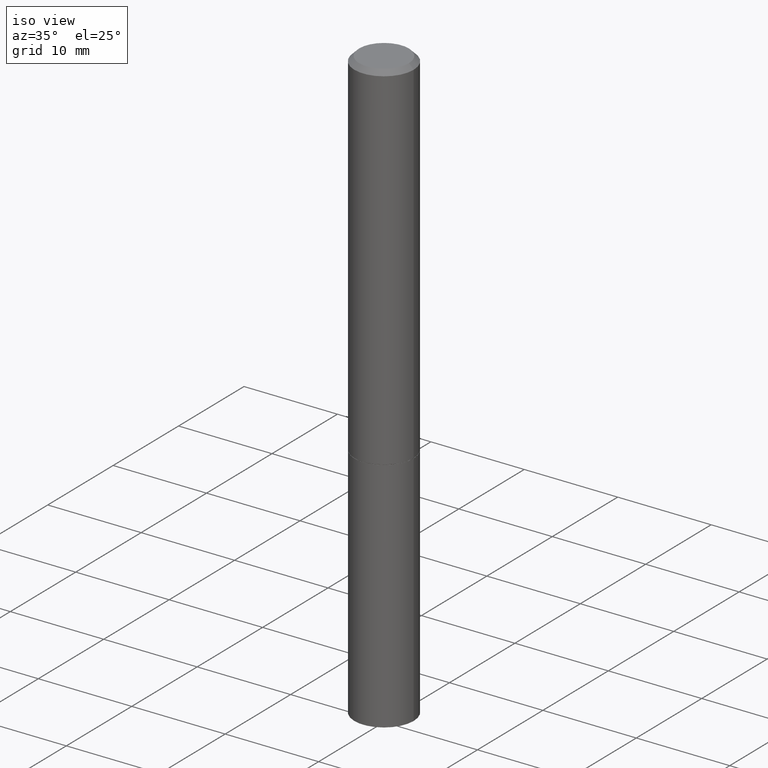
[diagram: clean part render]
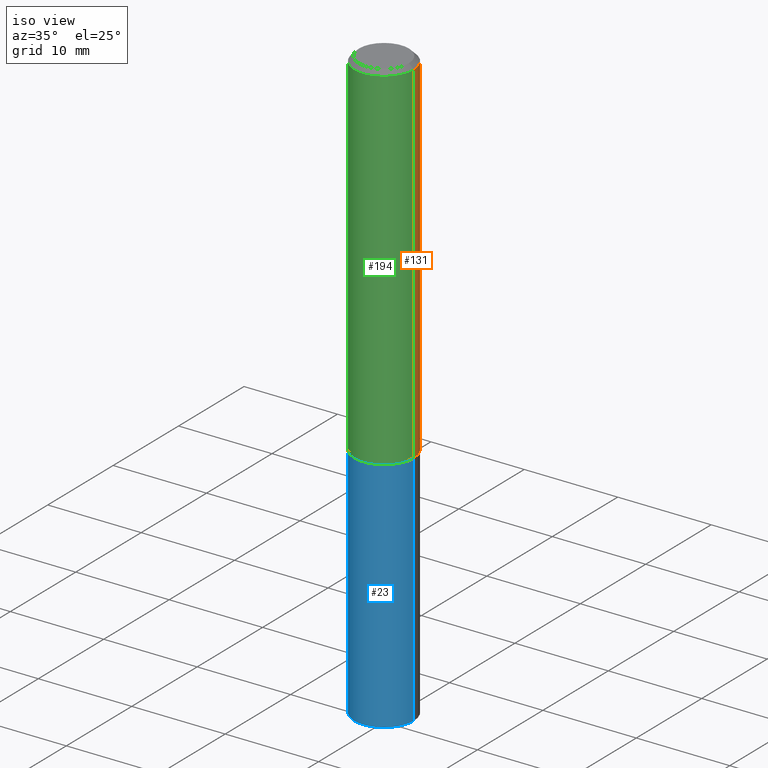
[diagram: same view with three faces highlighted in distinct colors, each labeled with its STEP entity id]
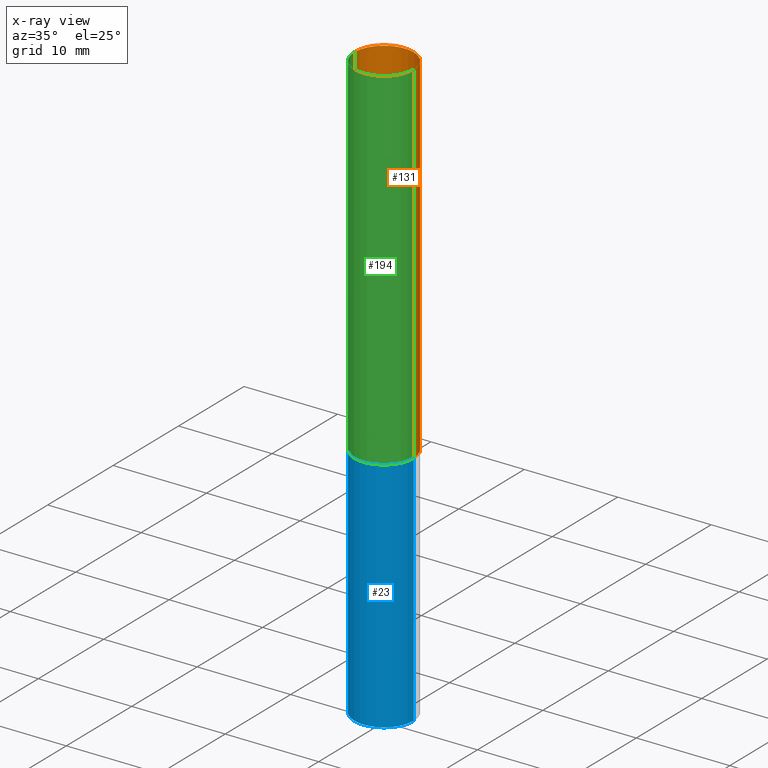
[diagram: x-ray of the same camera — body ghosted, the three highlighted faces saturated]
A machine part, iso view with three faces highlighted in distinct colors.
The next image is the same camera in x-ray (body ghosted, the three faces saturated) — at least one of them is partly hidden behind the body in this view.
Their STEP definitions:

[orange] entity #131 — the highlighted cylindrical surface (edge-blend (fillet) strip) has radius 3.175 mm, axis along (-0, 0, 1).
#14 = CARTESIAN_POINT ( 'NONE',  ( -0.1249999999999997918, 8.030407079339188573E-16, -0.02000000000000003858 ) ) ;
#17 = CARTESIAN_POINT ( 'NONE',  ( -0.1250000000000000278, -1.763601657151242227E-15, -1.499000000000000110 ) ) ;
#28 = CARTESIAN_POINT ( 'NONE',  ( 0.1249999999999999029, -8.728703347107826486E-16, 6.095220969744914837E-30 ) ) ;
#44 = VERTEX_POINT ( 'NONE', #66 ) ;
#58 = DIRECTION ( 'NONE',  ( -2.445468806185136877E-29, 3.491481338843145188E-15, 1.000000000000000000 ) ) ;
#61 = ORIENTED_EDGE ( 'NONE', *, *, #197, .F. ) ;
#64 = EDGE_CURVE ( 'NONE', #298, #278, #229, .T. ) ;
#66 = CARTESIAN_POINT ( 'NONE',  ( 0.1250000000000000278, -6.106600861636660086E-15, -1.499000000000000110 ) ) ;
#78 = ORIENTED_EDGE ( 'NONE', *, *, #171, .F. ) ;
#81 = VECTOR ( 'NONE', #319, 39.37007874015748143 ) ;
#111 = CIRCLE ( 'NONE', #168, 0.1249999999999997918 ) ;
#112 = CARTESIAN_POINT ( 'NONE',  ( -0.1249999999999999029, 8.881784197001245421E-16, -6.148668862818627323E-30 ) ) ;
#119 = DIRECTION ( 'NONE',  ( -2.445468806185136597E-29, 3.491481338843145583E-15, 1.000000000000000000 ) ) ;
#120 = CARTESIAN_POINT ( 'NONE',  ( 0.000000000000000000, 0.000000000000000000, 0.000000000000000000 ) ) ;
#131 = ADVANCED_FACE ( 'NONE', ( #267 ), #247, .T. ) ;
#137 = LINE ( 'NONE', #28, #357 ) ;
#150 = CIRCLE ( 'NONE', #238, 0.1250000000000000278 ) ;
#168 = AXIS2_PLACEMENT_3D ( 'NONE', #207, #223, #198 ) ;
#171 = EDGE_CURVE ( 'NONE', #240, #278, #111, .T. ) ;
#176 = CARTESIAN_POINT ( 'NONE',  ( 3.665757740471519853E-29, -5.233730526925875958E-15, -1.499000000000000110 ) ) ;
#197 = EDGE_CURVE ( 'NONE', #44, #240, #137, .T. ) ;
#198 = DIRECTION ( 'NONE',  ( 1.000000000000000000, -6.982962677686266711E-15, 0.000000000000000000 ) ) ;
#207 = CARTESIAN_POINT ( 'NONE',  ( 4.890937612370282792E-31, -6.982962677686303935E-17, -0.02000000000000003858 ) ) ;
#223 = DIRECTION ( 'NONE',  ( -2.445468806185136597E-29, 3.491481338843145583E-15, 1.000000000000000000 ) ) ;
#229 = LINE ( 'NONE', #112, #81 ) ;
#237 = DIRECTION ( 'NONE',  ( 1.000000000000000000, -6.982962677686269077E-15, 0.000000000000000000 ) ) ;
#238 = AXIS2_PLACEMENT_3D ( 'NONE', #176, #119, #237 ) ;
#240 = VERTEX_POINT ( 'NONE', #275 ) ;
#247 = CYLINDRICAL_SURFACE ( 'NONE', #271, 0.1249999999999999029 ) ;
#267 = FACE_OUTER_BOUND ( 'NONE', #313, .T. ) ;
#269 = ORIENTED_EDGE ( 'NONE', *, *, #64, .T. ) ;
#271 = AXIS2_PLACEMENT_3D ( 'NONE', #120, #334, #358 ) ;
#275 = CARTESIAN_POINT ( 'NONE',  ( 0.1249999999999997918, -9.273918764983031658E-16, -0.02000000000000003858 ) ) ;
#278 = VERTEX_POINT ( 'NONE', #14 ) ;
#292 = ORIENTED_EDGE ( 'NONE', *, *, #345, .T. ) ;
#298 = VERTEX_POINT ( 'NONE', #17 ) ;
#313 = EDGE_LOOP ( 'NONE', ( #292, #269, #78, #61 ) ) ;
#319 = DIRECTION ( 'NONE',  ( -2.445468806185136877E-29, 3.491481338843145188E-15, 1.000000000000000000 ) ) ;
#334 = DIRECTION ( 'NONE',  ( -2.445468806185136597E-29, 3.491481338843145583E-15, 1.000000000000000000 ) ) ;
#345 = EDGE_CURVE ( 'NONE', #44, #298, #150, .T. ) ;
#357 = VECTOR ( 'NONE', #58, 39.37007874015748143 ) ;
#358 = DIRECTION ( 'NONE',  ( 1.000000000000000000, -6.982962677686266711E-15, 4.876176775795935793E-29 ) ) ;

[blue] entity #23 — the highlighted cylindrical surface (edge-blend (fillet) strip) has radius 3.175 mm, axis along (-0, 0, 1).
#7 = DIRECTION ( 'NONE',  ( 1.000000000000000000, -6.982962677686262766E-15, 0.000000000000000000 ) ) ;
#19 = CARTESIAN_POINT ( 'NONE',  ( -0.1250000000000000000, -6.094784257986165933E-15, -2.500000000000000000 ) ) ;
#20 = ORIENTED_EDGE ( 'NONE', *, *, #306, .T. ) ;
#23 = ADVANCED_FACE ( 'NONE', ( #63 ), #33, .T. ) ;
#32 = CARTESIAN_POINT ( 'NONE',  ( -0.1250000000000000000, -6.094784257986165933E-15, -1.500000000000000222 ) ) ;
#33 = CYLINDRICAL_SURFACE ( 'NONE', #72, 0.1250000000000000000 ) ;
#43 = EDGE_LOOP ( 'NONE', ( #225, #65, #20, #160 ) ) ;
#49 = VECTOR ( 'NONE', #134, 39.37007874015748143 ) ;
#60 = AXIS2_PLACEMENT_3D ( 'NONE', #285, #77, #186 ) ;
#63 = FACE_OUTER_BOUND ( 'NONE', #43, .T. ) ;
#65 = ORIENTED_EDGE ( 'NONE', *, *, #328, .T. ) ;
#72 = AXIS2_PLACEMENT_3D ( 'NONE', #262, #142, #323 ) ;
#77 = DIRECTION ( 'NONE',  ( -2.445468806185136597E-29, 3.491481338843145583E-15, 1.000000000000000000 ) ) ;
#82 = LINE ( 'NONE', #251, #221 ) ;
#90 = AXIS2_PLACEMENT_3D ( 'NONE', #321, #143, #7 ) ;
#103 = EDGE_CURVE ( 'NONE', #217, #191, #199, .T. ) ;
#104 = VERTEX_POINT ( 'NONE', #366 ) ;
#134 = DIRECTION ( 'NONE',  ( -2.445468806185136877E-29, 3.491481338843145188E-15, 1.000000000000000000 ) ) ;
#142 = DIRECTION ( 'NONE',  ( -2.445468806185136597E-29, 3.491481338843145583E-15, 1.000000000000000000 ) ) ;
#143 = DIRECTION ( 'NONE',  ( -2.445468806185136597E-29, 3.491481338843145583E-15, 1.000000000000000000 ) ) ;
#160 = ORIENTED_EDGE ( 'NONE', *, *, #212, .F. ) ;
#163 = VERTEX_POINT ( 'NONE', #300 ) ;
#186 = DIRECTION ( 'NONE',  ( 1.000000000000000000, -6.982962677686270655E-15, 0.000000000000000000 ) ) ;
#191 = VERTEX_POINT ( 'NONE', #32 ) ;
#195 = CIRCLE ( 'NONE', #60, 0.1250000000000000000 ) ;
#199 = LINE ( 'NONE', #296, #49 ) ;
#212 = EDGE_CURVE ( 'NONE', #191, #104, #213, .T. ) ;
#213 = CIRCLE ( 'NONE', #90, 0.1250000000000000000 ) ;
#217 = VERTEX_POINT ( 'NONE', #19 ) ;
#221 = VECTOR ( 'NONE', #281, 39.37007874015748143 ) ;
#225 = ORIENTED_EDGE ( 'NONE', *, *, #103, .F. ) ;
#251 = CARTESIAN_POINT ( 'NONE',  ( 0.1250000000000000000, -8.728703347107833388E-16, 6.095220969744919741E-30 ) ) ;
#262 = CARTESIAN_POINT ( 'NONE',  ( 0.000000000000000000, 0.000000000000000000, 0.000000000000000000 ) ) ;
#281 = DIRECTION ( 'NONE',  ( -2.445468806185136877E-29, 3.491481338843145188E-15, 1.000000000000000000 ) ) ;
#285 = CARTESIAN_POINT ( 'NONE',  ( 6.113672015462842613E-29, -8.728703347107864943E-15, -2.500000000000000000 ) ) ;
#296 = CARTESIAN_POINT ( 'NONE',  ( -0.1250000000000000000, 8.881784197001252323E-16, -6.148668862818632227E-30 ) ) ;
#300 = CARTESIAN_POINT ( 'NONE',  ( 0.1250000000000000000, -9.601573681818648281E-15, -2.500000000000000000 ) ) ;
#306 = EDGE_CURVE ( 'NONE', #163, #104, #82, .T. ) ;
#321 = CARTESIAN_POINT ( 'NONE',  ( 3.668203209277704895E-29, -5.237222008264718177E-15, -1.500000000000000222 ) ) ;
#323 = DIRECTION ( 'NONE',  ( 1.000000000000000000, -6.982962677686266711E-15, 4.876176775795935793E-29 ) ) ;
#328 = EDGE_CURVE ( 'NONE', #217, #163, #195, .T. ) ;
#366 = CARTESIAN_POINT ( 'NONE',  ( 0.1250000000000000000, -6.110092342975501516E-15, -1.500000000000000222 ) ) ;

[green] entity #194 — the highlighted cylindrical surface (edge-blend (fillet) strip) has radius 3.175 mm, axis along (-0, 0, 1).
#6 = EDGE_CURVE ( 'NONE', #278, #240, #47, .T. ) ;
#11 = CIRCLE ( 'NONE', #34, 0.1250000000000000278 ) ;
#14 = CARTESIAN_POINT ( 'NONE',  ( -0.1249999999999997918, 8.030407079339188573E-16, -0.02000000000000003858 ) ) ;
#17 = CARTESIAN_POINT ( 'NONE',  ( -0.1250000000000000278, -1.763601657151242227E-15, -1.499000000000000110 ) ) ;
#28 = CARTESIAN_POINT ( 'NONE',  ( 0.1249999999999999029, -8.728703347107826486E-16, 6.095220969744914837E-30 ) ) ;
#34 = AXIS2_PLACEMENT_3D ( 'NONE', #222, #342, #53 ) ;
#44 = VERTEX_POINT ( 'NONE', #66 ) ;
#45 = ORIENTED_EDGE ( 'NONE', *, *, #6, .F. ) ;
#47 = CIRCLE ( 'NONE', #257, 0.1249999999999997918 ) ;
#53 = DIRECTION ( 'NONE',  ( 1.000000000000000000, -6.982962677686269077E-15, 0.000000000000000000 ) ) ;
#58 = DIRECTION ( 'NONE',  ( -2.445468806185136877E-29, 3.491481338843145188E-15, 1.000000000000000000 ) ) ;
#64 = EDGE_CURVE ( 'NONE', #298, #278, #229, .T. ) ;
#66 = CARTESIAN_POINT ( 'NONE',  ( 0.1250000000000000278, -6.106600861636660086E-15, -1.499000000000000110 ) ) ;
#81 = VECTOR ( 'NONE', #319, 39.37007874015748143 ) ;
#108 = DIRECTION ( 'NONE',  ( -2.445468806185136597E-29, 3.491481338843145583E-15, 1.000000000000000000 ) ) ;
#112 = CARTESIAN_POINT ( 'NONE',  ( -0.1249999999999999029, 8.881784197001245421E-16, -6.148668862818627323E-30 ) ) ;
#114 = CARTESIAN_POINT ( 'NONE',  ( 0.000000000000000000, 0.000000000000000000, 0.000000000000000000 ) ) ;
#137 = LINE ( 'NONE', #28, #357 ) ;
#167 = EDGE_LOOP ( 'NONE', ( #340, #318, #283, #45 ) ) ;
#190 = AXIS2_PLACEMENT_3D ( 'NONE', #114, #293, #259 ) ;
#194 = ADVANCED_FACE ( 'NONE', ( #200 ), #264, .T. ) ;
#197 = EDGE_CURVE ( 'NONE', #44, #240, #137, .T. ) ;
#200 = FACE_OUTER_BOUND ( 'NONE', #167, .T. ) ;
#222 = CARTESIAN_POINT ( 'NONE',  ( 3.665757740471519853E-29, -5.233730526925875958E-15, -1.499000000000000110 ) ) ;
#229 = LINE ( 'NONE', #112, #81 ) ;
#231 = CARTESIAN_POINT ( 'NONE',  ( 4.890937612370282792E-31, -6.982962677686303935E-17, -0.02000000000000003858 ) ) ;
#240 = VERTEX_POINT ( 'NONE', #275 ) ;
#257 = AXIS2_PLACEMENT_3D ( 'NONE', #231, #108, #322 ) ;
#259 = DIRECTION ( 'NONE',  ( 1.000000000000000000, -6.982962677686266711E-15, 4.876176775795935793E-29 ) ) ;
#264 = CYLINDRICAL_SURFACE ( 'NONE', #190, 0.1249999999999999029 ) ;
#275 = CARTESIAN_POINT ( 'NONE',  ( 0.1249999999999997918, -9.273918764983031658E-16, -0.02000000000000003858 ) ) ;
#278 = VERTEX_POINT ( 'NONE', #14 ) ;
#283 = ORIENTED_EDGE ( 'NONE', *, *, #197, .T. ) ;
#293 = DIRECTION ( 'NONE',  ( -2.445468806185136597E-29, 3.491481338843145583E-15, 1.000000000000000000 ) ) ;
#298 = VERTEX_POINT ( 'NONE', #17 ) ;
#318 = ORIENTED_EDGE ( 'NONE', *, *, #335, .T. ) ;
#319 = DIRECTION ( 'NONE',  ( -2.445468806185136877E-29, 3.491481338843145188E-15, 1.000000000000000000 ) ) ;
#322 = DIRECTION ( 'NONE',  ( 1.000000000000000000, -6.982962677686266711E-15, 0.000000000000000000 ) ) ;
#335 = EDGE_CURVE ( 'NONE', #298, #44, #11, .T. ) ;
#340 = ORIENTED_EDGE ( 'NONE', *, *, #64, .F. ) ;
#342 = DIRECTION ( 'NONE',  ( -2.445468806185136597E-29, 3.491481338843145583E-15, 1.000000000000000000 ) ) ;
#357 = VECTOR ( 'NONE', #58, 39.37007874015748143 ) ;